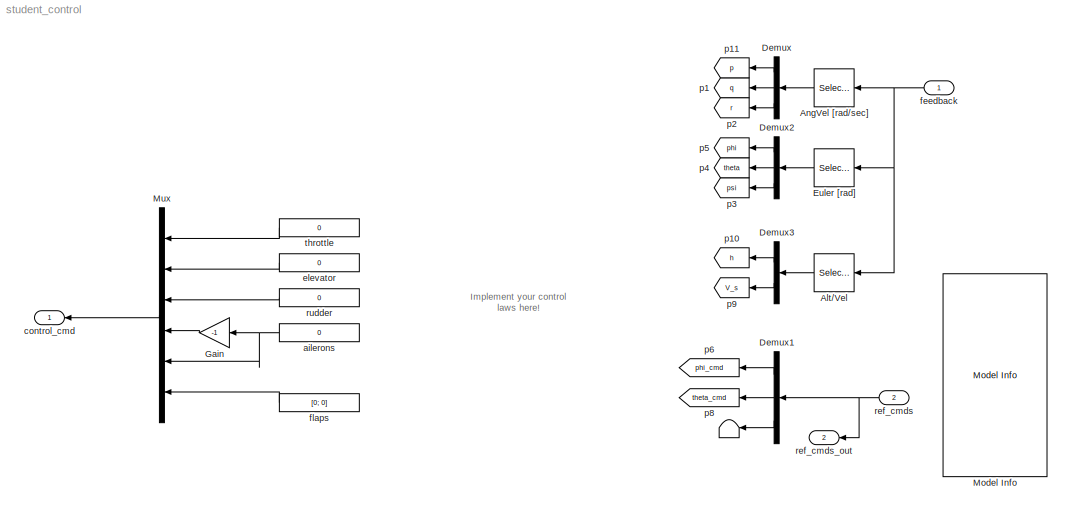
MODEL student_control
KIND model
BLOCK [Terminator]  
  SID = 757
BLOCK [Selector] Alt//Vel
  IndexOptions = Index vector (dialog)
  Indices = [10:11]
  InputPortWidth = 19
  OutputSizes = 1
  Ports = [1, 1]
  SID = 391
BLOCK [Selector] AngVel [rad//sec]
  IndexOptions = Index vector (dialog)
  Indices = [4:6]
  InputPortWidth = 19
  OutputSizes = 1
  Ports = [1, 1]
  SID = 398
BLOCK [Demux] Demux
  DisplayOption = bar
  Outputs = 3
  Ports = [1, 3]
  SID = 399
BLOCK [Demux] Demux1
  DisplayOption = bar
  Outputs = [1 1 10]
  Ports = [1, 3]
  SID = 777
BLOCK [Demux] Demux2
  DisplayOption = bar
  Outputs = 3
  Ports = [1, 3]
  SID = 401
BLOCK [Demux] Demux3
  DisplayOption = bar
  Outputs = 2
  Ports = [1, 2]
  SID = 402
BLOCK [Selector] Euler [rad]
  IndexOptions = Index vector (dialog)
  Indices = [1:3]
  InputPortWidth = 19
  OutputSizes = 1
  Ports = [1, 1]
  SID = 403
BLOCK [Gain] Gain
  Gain = -1
  OutDataTypeStr = Inherit: Inherit via internal rule
  ParamDataTypeStr = Inherit: Inherit via internal rule
  SID = 414
  SaturateOnIntegerOverflow = off
BLOCK [Reference] Model Info  REF=simulink/Model-Wide\nUtilities/Model Info
  BlockCM = None
  DisplayStringWithTags = Ref Cmd Port Info\n\n1. phi_cmd\n2. theta_cmd\n3. psi_cmd\n4. p_cmd\n5. q_cmd\n6. r_cmd\n7. V_s_cmd\n8. h_cmd\n9. gndtrk_cmd\n10. aoa_cmd\n11. aos_cmd\n12. gamma_cmd
  Frame = on
  HorizontalTextAlignment = Center
  InitialBlockCM = None
  LeftAlignmentValue = 0.5
  MaskDisplayString = Ref Cmd Port Info\\n\\n1. phi_cmd\\n2. theta_cmd\\n3. psi_cmd\\n4. p_cmd\\n5. q_cmd\\n6. r_cmd\\n7. V_s_cmd\\n8. h_cmd\\n9. gndtrk_cmd\\n10. aoa_cmd\\n11. aos_cmd\\n12. gamma_cmd
  Ports = []
  SID = 740
  SourceBlock = simulink/Model-Wide\nUtilities/Model Info
  SourceBlockDiagram = student_control
  SourceType = CMBlock
  TagMaxNumber = 20
BLOCK [Mux] Mux
  DisplayOption = bar
  Inputs = 6
  Ports = [6, 1]
  SID = 415
BLOCK [Constant] ailerons
  SID = 739
  Value = 0
BLOCK [Outport] control_cmd
  IconDisplay = Port number
  SID = 471
BLOCK [Constant] elevator
  SID = 737
  Value = 0
BLOCK [Inport] feedback
  IconDisplay = Port number
  SID = 389
BLOCK [Constant] flaps
  SID = 458
  Value = [0; 0]
BLOCK [Goto] p1
  GotoTag = q
  SID = 460
BLOCK [Goto] p10
  GotoTag = h
  SID = 461
BLOCK [Goto] p11
  GotoTag = p
  SID = 679
BLOCK [Goto] p2
  GotoTag = r
  SID = 462
BLOCK [Goto] p3
  GotoTag = psi
  SID = 463
BLOCK [Goto] p4
  GotoTag = theta
  SID = 464
BLOCK [Goto] p5
  GotoTag = phi
  SID = 465
BLOCK [Goto] p6
  GotoTag = phi_cmd
  SID = 778
BLOCK [Goto] p8
  GotoTag = theta_cmd
  SID = 779
BLOCK [Goto] p9
  GotoTag = V_s
  SID = 469
BLOCK [Inport] ref_cmds
  IconDisplay = Port number
  Port = 2
  SID = 756
BLOCK [Outport] ref_cmds_out
  IconDisplay = Port number
  Port = 2
  SID = 780
BLOCK [Constant] rudder
  SID = 738
  Value = 0
BLOCK [Constant] throttle
  SID = 736
  Value = 0
ANNOTATION (root): Implement your control \nlaws here!
LINE Alt//Vel:1 -> Demux3:1
LINE AngVel [rad//sec]:1 -> Demux:1
LINE Demux1:1 -> p6:1
LINE Demux1:2 -> p8:1
LINE Demux1:3 ->  :1
LINE Demux2:1 -> p5:1
LINE Demux2:2 -> p4:1
LINE Demux2:3 -> p3:1
LINE Demux3:1 -> p10:1
LINE Demux3:2 -> p9:1
LINE Demux:1 -> p11:1
LINE Demux:2 -> p1:1
LINE Demux:3 -> p2:1
LINE Euler [rad]:1 -> Demux2:1
LINE Gain:1 -> Mux:4
LINE Mux:1 -> control_cmd:1
NET ailerons:1 -> Gain:1, Mux:5
LINE elevator:1 -> Mux:2
NET feedback:1 -> Alt//Vel:1, AngVel [rad//sec]:1, Euler [rad]:1
LINE flaps:1 -> Mux:6
NET ref_cmds:1 -> Demux1:1, ref_cmds_out:1
LINE rudder:1 -> Mux:3
LINE throttle:1 -> Mux:1
note: NET lines group one-source signal fan-out (src -> all destinations, sorted); 1:1 wires keep LINE
